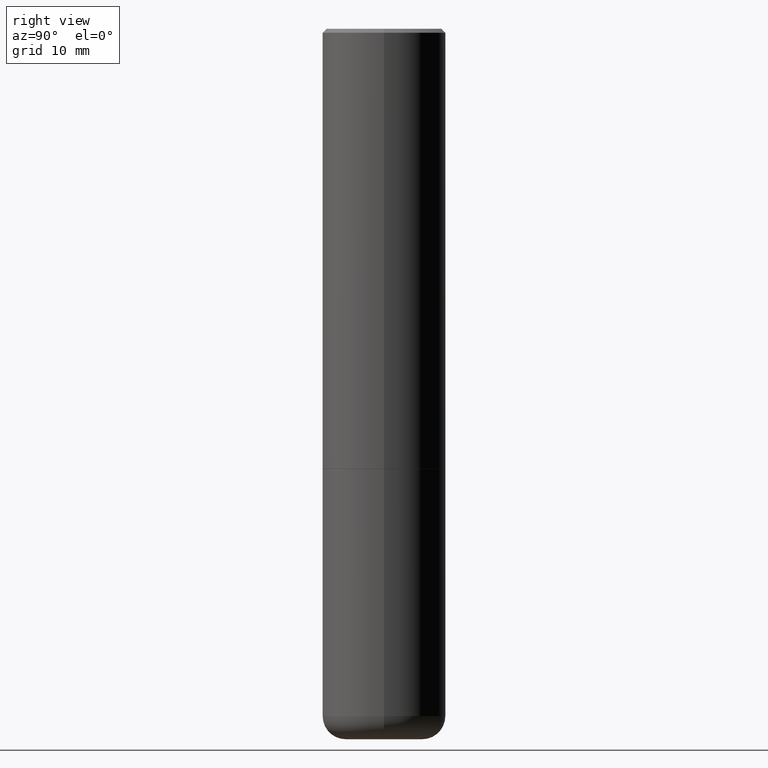
[diagram: clean part render]
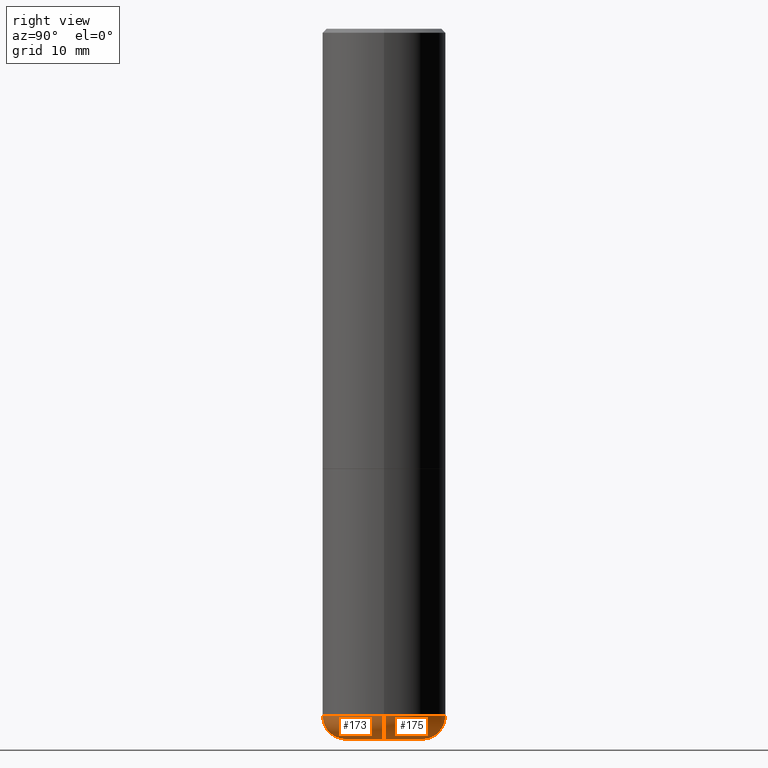
[diagram: same view with one multi-face feature highlighted, each face labeled with its STEP entity id]
A machine part, right view. The highlighted faces form ONE feature: a constant-radius fillet chain: 2 tangent blend faces with common blend radius 2.9997 mm. The faces share edges in the B-rep.
Their STEP definitions:
[1] entity #173 (Torus):
#3 = AXIS2_PLACEMENT_3D ( 'NONE', #31, #412, #193 ) ;
#19 = CARTESIAN_POINT ( 'NONE',  ( 8.857488016002563354E-29, -1.264614540928987041E-14, -3.621999999999999442 ) ) ;
#31 = CARTESIAN_POINT ( 'NONE',  ( 0.1968500000000000250, -1.360839766627503947E-14, -3.503899999999999793 ) ) ;
#32 = VERTEX_POINT ( 'NONE', #377 ) ;
#36 = AXIS2_PLACEMENT_3D ( 'NONE', #19, #60, #121 ) ;
#46 = EDGE_LOOP ( 'NONE', ( #251, #192, #100, #382 ) ) ;
#47 = EDGE_CURVE ( 'NONE', #32, #414, #231, .T. ) ;
#48 = CARTESIAN_POINT ( 'NONE',  ( -0.1968500000000000250, -1.062169457542108764E-14, -3.621999999999999442 ) ) ;
#50 = FACE_OUTER_BOUND ( 'NONE', #46, .T. ) ;
#55 = VERTEX_POINT ( 'NONE', #218 ) ;
#60 = DIRECTION ( 'NONE',  ( -2.445468806185136597E-29, 3.491481338843145583E-15, 1.000000000000000000 ) ) ;
#86 = CIRCLE ( 'NONE', #159, 0.3149500000000000077 ) ;
#100 = ORIENTED_EDGE ( 'NONE', *, *, #47, .T. ) ;
#115 = CIRCLE ( 'NONE', #147, 0.1180999999999997191 ) ;
#120 = TOROIDAL_SURFACE ( 'NONE', #351, 0.1968500000000000250, 0.1180999999999997468 ) ;
#121 = DIRECTION ( 'NONE',  ( 1.000000000000000000, -6.982962677686267499E-15, 0.000000000000000000 ) ) ;
#127 = DIRECTION ( 'NONE',  ( -2.445468806185136597E-29, 3.491481338843145583E-15, 1.000000000000000000 ) ) ;
#128 = EDGE_CURVE ( 'NONE', #55, #414, #86, .T. ) ;
#139 = CARTESIAN_POINT ( 'NONE',  ( 0.3149499999999998967, -1.443308555850978615E-14, -3.503899999999999793 ) ) ;
#147 = AXIS2_PLACEMENT_3D ( 'NONE', #272, #203, #205 ) ;
#159 = AXIS2_PLACEMENT_3D ( 'NONE', #161, #127, #260 ) ;
#161 = CARTESIAN_POINT ( 'NONE',  ( 8.568678149992099474E-29, -1.223380146317249786E-14, -3.503899999999999793 ) ) ;
#173 = ADVANCED_FACE ( 'NONE', ( #50 ), #120, .T. ) ;
#192 = ORIENTED_EDGE ( 'NONE', *, *, #311, .T. ) ;
#193 = DIRECTION ( 'NONE',  ( 1.000000000000000000, -6.982962677686273021E-15, 0.000000000000000000 ) ) ;
#203 = DIRECTION ( 'NONE',  ( 7.105427357601001859E-15, 1.000000000000000000, -3.491481338843145583E-15 ) ) ;
#205 = DIRECTION ( 'NONE',  ( -1.000000000000000000, 7.105427357601005014E-15, 0.000000000000000000 ) ) ;
#218 = CARTESIAN_POINT ( 'NONE',  ( -0.3149499999999998967, -9.995947116896063452E-15, -3.503899999999999793 ) ) ;
#231 = CIRCLE ( 'NONE', #3, 0.1180999999999997191 ) ;
#236 = DIRECTION ( 'NONE',  ( 1.000000000000000000, -6.982962677686269866E-15, 4.883557194083114022E-29 ) ) ;
#244 = CIRCLE ( 'NONE', #36, 0.1968500000000000250 ) ;
#251 = ORIENTED_EDGE ( 'NONE', *, *, #298, .F. ) ;
#260 = DIRECTION ( 'NONE',  ( 1.000000000000000000, -6.982962677686263555E-15, 0.000000000000000000 ) ) ;
#272 = CARTESIAN_POINT ( 'NONE',  ( -0.1968500000000000250, -1.083509808782873928E-14, -3.503899999999999793 ) ) ;
#298 = EDGE_CURVE ( 'NONE', #383, #55, #115, .T. ) ;
#311 = EDGE_CURVE ( 'NONE', #383, #32, #244, .T. ) ;
#351 = AXIS2_PLACEMENT_3D ( 'NONE', #386, #360, #236 ) ;
#360 = DIRECTION ( 'NONE',  ( -2.445468806185136597E-29, 3.491481338843145583E-15, 1.000000000000000000 ) ) ;
#377 = CARTESIAN_POINT ( 'NONE',  ( 0.1968500000000000250, -1.402074161239241202E-14, -3.621999999999999442 ) ) ;
#382 = ORIENTED_EDGE ( 'NONE', *, *, #128, .F. ) ;
#383 = VERTEX_POINT ( 'NONE', #48 ) ;
#386 = CARTESIAN_POINT ( 'NONE',  ( 8.568678149992099474E-29, -1.223380146317249786E-14, -3.503899999999999793 ) ) ;
#412 = DIRECTION ( 'NONE',  ( -6.982962677686266711E-15, -1.000000000000000000, 3.491481338843145583E-15 ) ) ;
#414 = VERTEX_POINT ( 'NONE', #139 ) ;
[2] entity #175 (Torus):
#3 = AXIS2_PLACEMENT_3D ( 'NONE', #31, #412, #193 ) ;
#24 = AXIS2_PLACEMENT_3D ( 'NONE', #134, #202, #144 ) ;
#31 = CARTESIAN_POINT ( 'NONE',  ( 0.1968500000000000250, -1.360839766627503947E-14, -3.503899999999999793 ) ) ;
#32 = VERTEX_POINT ( 'NONE', #377 ) ;
#35 = DIRECTION ( 'NONE',  ( 1.000000000000000000, -6.982962677686263555E-15, 0.000000000000000000 ) ) ;
#47 = EDGE_CURVE ( 'NONE', #32, #414, #231, .T. ) ;
#48 = CARTESIAN_POINT ( 'NONE',  ( -0.1968500000000000250, -1.062169457542108764E-14, -3.621999999999999442 ) ) ;
#55 = VERTEX_POINT ( 'NONE', #218 ) ;
#70 = EDGE_LOOP ( 'NONE', ( #164, #281, #165, #91 ) ) ;
#80 = DIRECTION ( 'NONE',  ( -2.445468806185136597E-29, 3.491481338843145583E-15, 1.000000000000000000 ) ) ;
#91 = ORIENTED_EDGE ( 'NONE', *, *, #47, .F. ) ;
#106 = EDGE_CURVE ( 'NONE', #414, #55, #242, .T. ) ;
#115 = CIRCLE ( 'NONE', #147, 0.1180999999999997191 ) ;
#134 = CARTESIAN_POINT ( 'NONE',  ( 8.857488016002563354E-29, -1.264614540928987041E-14, -3.621999999999999442 ) ) ;
#135 = DIRECTION ( 'NONE',  ( 1.000000000000000000, -6.982962677686269866E-15, 4.883557194083114022E-29 ) ) ;
#139 = CARTESIAN_POINT ( 'NONE',  ( 0.3149499999999998967, -1.443308555850978615E-14, -3.503899999999999793 ) ) ;
#144 = DIRECTION ( 'NONE',  ( 1.000000000000000000, -6.982962677686267499E-15, 0.000000000000000000 ) ) ;
#147 = AXIS2_PLACEMENT_3D ( 'NONE', #272, #203, #205 ) ;
#164 = ORIENTED_EDGE ( 'NONE', *, *, #403, .T. ) ;
#165 = ORIENTED_EDGE ( 'NONE', *, *, #106, .F. ) ;
#166 = CARTESIAN_POINT ( 'NONE',  ( 8.568678149992099474E-29, -1.223380146317249786E-14, -3.503899999999999793 ) ) ;
#175 = ADVANCED_FACE ( 'NONE', ( #240 ), #330, .T. ) ;
#193 = DIRECTION ( 'NONE',  ( 1.000000000000000000, -6.982962677686273021E-15, 0.000000000000000000 ) ) ;
#202 = DIRECTION ( 'NONE',  ( -2.445468806185136597E-29, 3.491481338843145583E-15, 1.000000000000000000 ) ) ;
#203 = DIRECTION ( 'NONE',  ( 7.105427357601001859E-15, 1.000000000000000000, -3.491481338843145583E-15 ) ) ;
#205 = DIRECTION ( 'NONE',  ( -1.000000000000000000, 7.105427357601005014E-15, 0.000000000000000000 ) ) ;
#218 = CARTESIAN_POINT ( 'NONE',  ( -0.3149499999999998967, -9.995947116896063452E-15, -3.503899999999999793 ) ) ;
#231 = CIRCLE ( 'NONE', #3, 0.1180999999999997191 ) ;
#240 = FACE_OUTER_BOUND ( 'NONE', #70, .T. ) ;
#242 = CIRCLE ( 'NONE', #303, 0.3149500000000000077 ) ;
#252 = CIRCLE ( 'NONE', #24, 0.1968500000000000250 ) ;
#256 = DIRECTION ( 'NONE',  ( -2.445468806185136597E-29, 3.491481338843145583E-15, 1.000000000000000000 ) ) ;
#272 = CARTESIAN_POINT ( 'NONE',  ( -0.1968500000000000250, -1.083509808782873928E-14, -3.503899999999999793 ) ) ;
#281 = ORIENTED_EDGE ( 'NONE', *, *, #298, .T. ) ;
#298 = EDGE_CURVE ( 'NONE', #383, #55, #115, .T. ) ;
#303 = AXIS2_PLACEMENT_3D ( 'NONE', #166, #256, #35 ) ;
#330 = TOROIDAL_SURFACE ( 'NONE', #356, 0.1968500000000000250, 0.1180999999999997468 ) ;
#334 = CARTESIAN_POINT ( 'NONE',  ( 8.568678149992099474E-29, -1.223380146317249786E-14, -3.503899999999999793 ) ) ;
#356 = AXIS2_PLACEMENT_3D ( 'NONE', #334, #80, #135 ) ;
#377 = CARTESIAN_POINT ( 'NONE',  ( 0.1968500000000000250, -1.402074161239241202E-14, -3.621999999999999442 ) ) ;
#383 = VERTEX_POINT ( 'NONE', #48 ) ;
#403 = EDGE_CURVE ( 'NONE', #32, #383, #252, .T. ) ;
#412 = DIRECTION ( 'NONE',  ( -6.982962677686266711E-15, -1.000000000000000000, 3.491481338843145583E-15 ) ) ;
#414 = VERTEX_POINT ( 'NONE', #139 ) ;